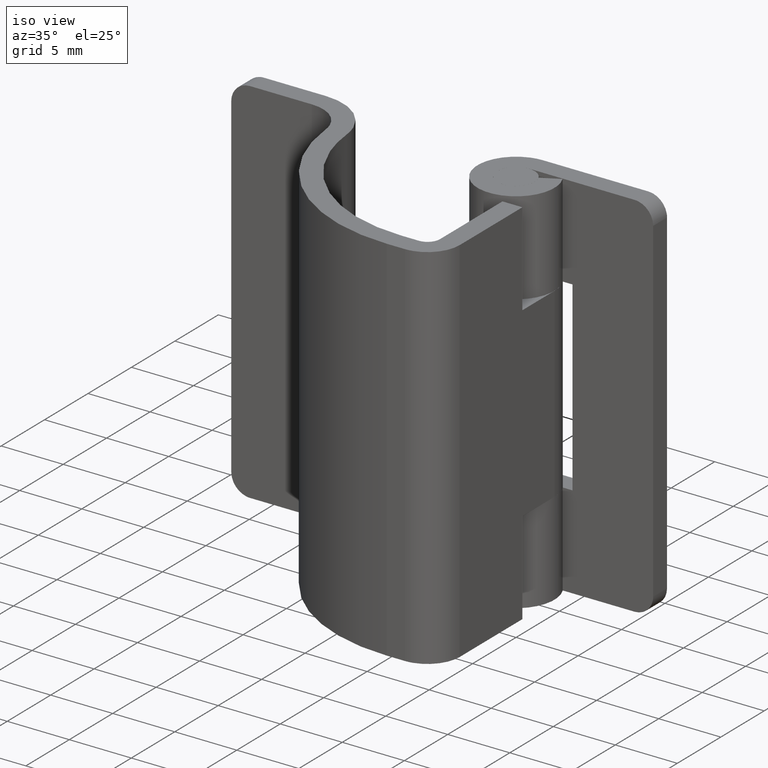
[diagram: clean part render]
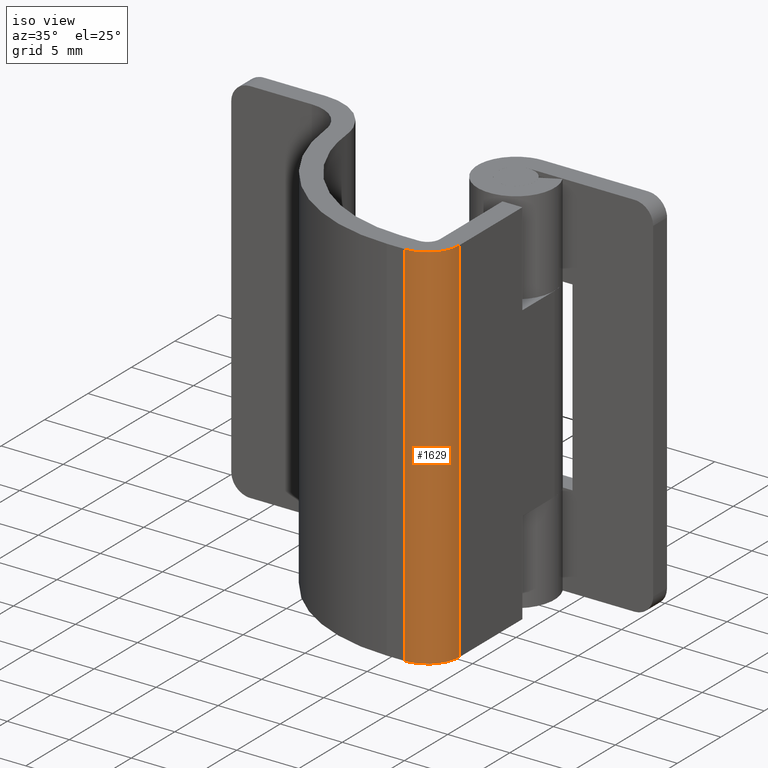
[diagram: same view with one face highlighted and labeled with its STEP entity id]
A machine part, iso view. The second image highlights one B-rep face of the part: STEP entity #1629.
In plain terms, the highlighted face is a freeform B-spline surface patch.
Its self-contained STEP definition (entity closure, byte-faithful):
#1569=CARTESIAN_POINT('',(-0.400100000033060,-10.877311007704231,-0.750000000000001));
#1570=CARTESIAN_POINT('',(-0.400100000033060,-10.877311007704231,30.768750000000001));
#1571=CARTESIAN_POINT('',(-0.376190790889124,-13.617035009167390,-0.750000000000001));
#1572=CARTESIAN_POINT('',(-0.376190790889124,-13.617035009167390,30.768749999999997));
#1573=CARTESIAN_POINT('',(-3.113411407149778,-13.497525376112829,-0.750000000000001));
#1574=CARTESIAN_POINT('',(-3.113411407149778,-13.497525376112829,30.768750000000001));
#1582=(BOUNDED_SURFACE()B_SPLINE_SURFACE(1,2,((#1569,#1571,#1573),(#1570,#1572,#1574)),.UNSPECIFIED.,.F.,.F.,.U.)B_SPLINE_SURFACE_WITH_KNOTS((2,2),(3,3),(0.0,31.518750000000001),(0.0,4.468192622055091),.UNSPECIFIED.)GEOMETRIC_REPRESENTATION_ITEM()RATIONAL_B_SPLINE_SURFACE(((1.0,0.688354575693754,1.0),(1.0,0.688354575693754,1.0)))REPRESENTATION_ITEM('')SURFACE());
#1583=CARTESIAN_POINT('',(-0.400000999999904,-10.900000000000000,30.0));
#1584=VERTEX_POINT('',#1583);
#1585=CARTESIAN_POINT('',(-3.000000999999900,-13.500000000000000,30.0));
#1586=VERTEX_POINT('',#1585);
#1587=CARTESIAN_POINT('',(-0.400000999999905,-10.900000000000000,30.0));
#1588=CARTESIAN_POINT('',(-0.400000999999905,-13.500000000000000,30.000000000000004));
#1589=CARTESIAN_POINT('',(-3.000000999999905,-13.500000000000000,30.0));
#1597=(BOUNDED_CURVE()B_SPLINE_CURVE(2,(#1587,#1588,#1589),.UNSPECIFIED.,.F.,.U.)CURVE()GEOMETRIC_REPRESENTATION_ITEM()QUASI_UNIFORM_CURVE()RATIONAL_B_SPLINE_CURVE((1.0,0.707106781186548,1.0))REPRESENTATION_ITEM(''));
#1598=EDGE_CURVE('',#1584,#1586,#1597,.T.);
#1599=ORIENTED_EDGE('',*,*,#1598,.T.);
#1600=CARTESIAN_POINT('',(-3.000000999999900,-13.500000000000000,0.0));
#1601=VERTEX_POINT('',#1600);
#1602=CARTESIAN_POINT('',(-3.000000999999900,-13.500000000000000,0.0));
#1603=CARTESIAN_POINT('',(-3.000000999999900,-13.500000000000000,30.0));
#1604=QUASI_UNIFORM_CURVE('',1,(#1602,#1603),.UNSPECIFIED.,.F.,.U.);
#1605=EDGE_CURVE('',#1601,#1586,#1604,.T.);
#1606=ORIENTED_EDGE('',*,*,#1605,.F.);
#1607=CARTESIAN_POINT('',(-0.400000999999904,-10.900000000000000,0.0));
#1608=VERTEX_POINT('',#1607);
#1609=CARTESIAN_POINT('',(-0.400000999999905,-10.900000000000000,0.0));
#1610=CARTESIAN_POINT('',(-0.400000999999905,-13.500000000000000,0.0));
#1611=CARTESIAN_POINT('',(-3.000000999999905,-13.500000000000000,0.0));
#1619=(BOUNDED_CURVE()B_SPLINE_CURVE(2,(#1609,#1610,#1611),.UNSPECIFIED.,.F.,.U.)CURVE()GEOMETRIC_REPRESENTATION_ITEM()QUASI_UNIFORM_CURVE()RATIONAL_B_SPLINE_CURVE((1.0,0.707106781186548,1.0))REPRESENTATION_ITEM(''));
#1620=EDGE_CURVE('',#1608,#1601,#1619,.T.);
#1621=ORIENTED_EDGE('',*,*,#1620,.F.);
#1622=CARTESIAN_POINT('',(-0.400000999999904,-10.900000000000000,0.0));
#1623=CARTESIAN_POINT('',(-0.400000999999904,-10.900000000000000,30.0));
#1624=QUASI_UNIFORM_CURVE('',1,(#1622,#1623),.UNSPECIFIED.,.F.,.U.);
#1625=EDGE_CURVE('',#1608,#1584,#1624,.T.);
#1626=ORIENTED_EDGE('',*,*,#1625,.T.);
#1627=EDGE_LOOP('',(#1599,#1606,#1621,#1626));
#1628=FACE_OUTER_BOUND('',#1627,.T.);
#1629=ADVANCED_FACE('',(#1628),#1582,.T.);